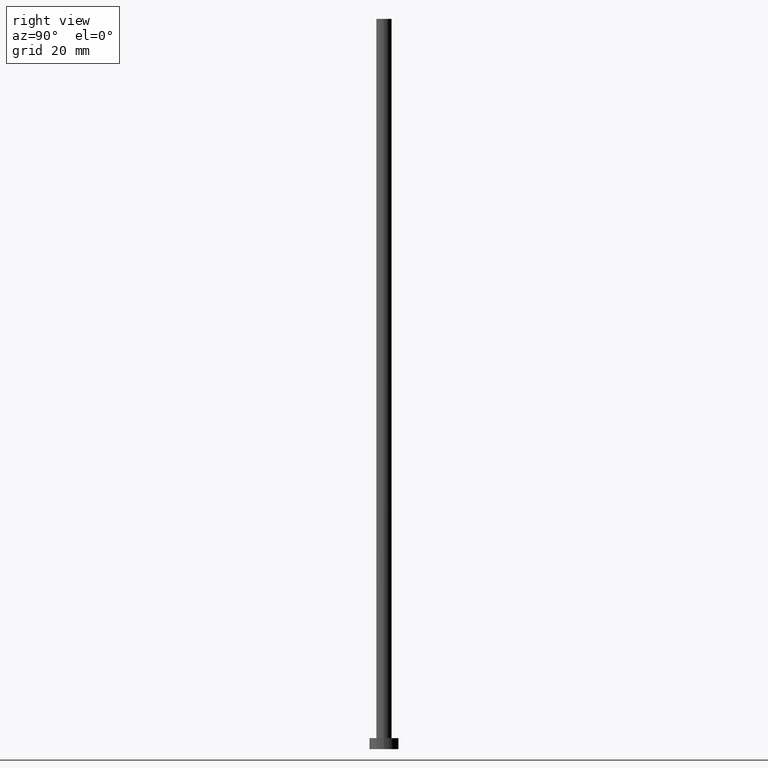
[diagram: clean part render]
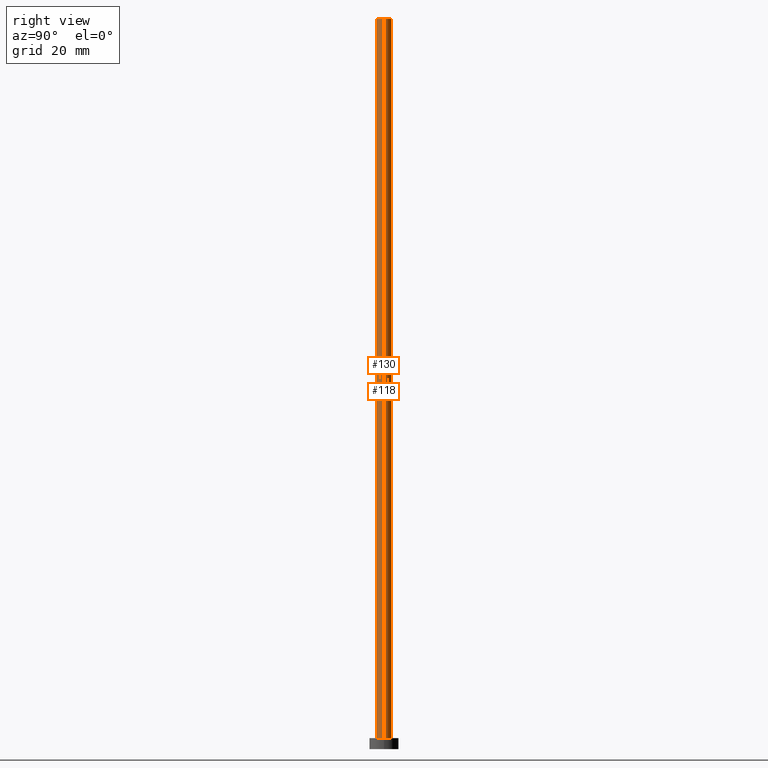
[diagram: same view with one multi-face feature highlighted, each face labeled with its STEP entity id]
A machine part, right view. The highlighted faces form ONE feature: a constant-radius fillet chain: 2 tangent blend faces with common blend radius 2.1 mm. The faces share edges in the B-rep.
Their STEP definitions:
[1] entity #130 (Cylinder):
#6 = AXIS2_PLACEMENT_3D ( 'NONE', #13, #173, #135 ) ;
#13 = CARTESIAN_POINT ( 'NONE',  ( 0.000000000000000000, 0.000000000000000000, 200.0000000000000000 ) ) ;
#23 = VERTEX_POINT ( 'NONE', #93 ) ;
#25 = CIRCLE ( 'NONE', #165, 2.100000000000000089 ) ;
#28 = VERTEX_POINT ( 'NONE', #245 ) ;
#30 = FACE_OUTER_BOUND ( 'NONE', #90, .T. ) ;
#33 = CARTESIAN_POINT ( 'NONE',  ( 2.100000000000000089, 2.571758278209441957E-16, 3.000000000000000000 ) ) ;
#36 = VECTOR ( 'NONE', #49, 1000.000000000000000 ) ;
#49 = DIRECTION ( 'NONE',  ( -0.000000000000000000, -0.000000000000000000, -1.000000000000000000 ) ) ;
#52 = CARTESIAN_POINT ( 'NONE',  ( 0.000000000000000000, 0.000000000000000000, 3.000000000000000000 ) ) ;
#54 = EDGE_CURVE ( 'NONE', #23, #131, #208, .T. ) ;
#59 = EDGE_CURVE ( 'NONE', #28, #131, #117, .T. ) ;
#66 = ORIENTED_EDGE ( 'NONE', *, *, #147, .F. ) ;
#90 = EDGE_LOOP ( 'NONE', ( #113, #66, #97, #169 ) ) ;
#93 = CARTESIAN_POINT ( 'NONE',  ( -2.100000000000000089, 0.000000000000000000, 3.000000000000000000 ) ) ;
#97 = ORIENTED_EDGE ( 'NONE', *, *, #126, .T. ) ;
#100 = DIRECTION ( 'NONE',  ( -0.000000000000000000, -0.000000000000000000, -1.000000000000000000 ) ) ;
#103 = CARTESIAN_POINT ( 'NONE',  ( 0.000000000000000000, 0.000000000000000000, 200.0000000000000000 ) ) ;
#110 = AXIS2_PLACEMENT_3D ( 'NONE', #52, #193, #210 ) ;
#113 = ORIENTED_EDGE ( 'NONE', *, *, #59, .F. ) ;
#117 = LINE ( 'NONE', #255, #134 ) ;
#119 = DIRECTION ( 'NONE',  ( 1.000000000000000000, 0.000000000000000000, 0.000000000000000000 ) ) ;
#126 = EDGE_CURVE ( 'NONE', #144, #23, #171, .T. ) ;
#130 = ADVANCED_FACE ( 'NONE', ( #30 ), #190, .T. ) ;
#131 = VERTEX_POINT ( 'NONE', #33 ) ;
#134 = VECTOR ( 'NONE', #100, 1000.000000000000000 ) ;
#135 = DIRECTION ( 'NONE',  ( -1.000000000000000000, 0.000000000000000000, 0.000000000000000000 ) ) ;
#144 = VERTEX_POINT ( 'NONE', #195 ) ;
#147 = EDGE_CURVE ( 'NONE', #144, #28, #25, .T. ) ;
#165 = AXIS2_PLACEMENT_3D ( 'NONE', #103, #249, #119 ) ;
#169 = ORIENTED_EDGE ( 'NONE', *, *, #54, .T. ) ;
#171 = LINE ( 'NONE', #207, #36 ) ;
#173 = DIRECTION ( 'NONE',  ( -0.000000000000000000, -0.000000000000000000, -1.000000000000000000 ) ) ;
#190 = CYLINDRICAL_SURFACE ( 'NONE', #6, 2.100000000000000089 ) ;
#193 = DIRECTION ( 'NONE',  ( 0.000000000000000000, 0.000000000000000000, 1.000000000000000000 ) ) ;
#195 = CARTESIAN_POINT ( 'NONE',  ( -2.100000000000000089, 0.000000000000000000, 200.0000000000000000 ) ) ;
#207 = CARTESIAN_POINT ( 'NONE',  ( -2.100000000000000089, 0.000000000000000000, 200.0000000000000000 ) ) ;
#208 = CIRCLE ( 'NONE', #110, 2.100000000000000089 ) ;
#210 = DIRECTION ( 'NONE',  ( 1.000000000000000000, 0.000000000000000000, 0.000000000000000000 ) ) ;
#245 = CARTESIAN_POINT ( 'NONE',  ( 2.100000000000000089, 2.571758278209441957E-16, 200.0000000000000000 ) ) ;
#249 = DIRECTION ( 'NONE',  ( 0.000000000000000000, 0.000000000000000000, 1.000000000000000000 ) ) ;
#255 = CARTESIAN_POINT ( 'NONE',  ( 2.100000000000000089, 2.571758278209441957E-16, 200.0000000000000000 ) ) ;
[2] entity #118 (Cylinder):
#23 = VERTEX_POINT ( 'NONE', #93 ) ;
#28 = VERTEX_POINT ( 'NONE', #245 ) ;
#33 = CARTESIAN_POINT ( 'NONE',  ( 2.100000000000000089, 2.571758278209441957E-16, 3.000000000000000000 ) ) ;
#36 = VECTOR ( 'NONE', #49, 1000.000000000000000 ) ;
#39 = AXIS2_PLACEMENT_3D ( 'NONE', #150, #78, #47 ) ;
#47 = DIRECTION ( 'NONE',  ( -1.000000000000000000, 0.000000000000000000, 0.000000000000000000 ) ) ;
#49 = DIRECTION ( 'NONE',  ( -0.000000000000000000, -0.000000000000000000, -1.000000000000000000 ) ) ;
#59 = EDGE_CURVE ( 'NONE', #28, #131, #117, .T. ) ;
#71 = ORIENTED_EDGE ( 'NONE', *, *, #59, .T. ) ;
#73 = EDGE_LOOP ( 'NONE', ( #247, #71, #242, #184 ) ) ;
#74 = DIRECTION ( 'NONE',  ( 1.000000000000000000, 0.000000000000000000, 0.000000000000000000 ) ) ;
#78 = DIRECTION ( 'NONE',  ( -0.000000000000000000, -0.000000000000000000, -1.000000000000000000 ) ) ;
#93 = CARTESIAN_POINT ( 'NONE',  ( -2.100000000000000089, 0.000000000000000000, 3.000000000000000000 ) ) ;
#100 = DIRECTION ( 'NONE',  ( -0.000000000000000000, -0.000000000000000000, -1.000000000000000000 ) ) ;
#107 = DIRECTION ( 'NONE',  ( 1.000000000000000000, 0.000000000000000000, 0.000000000000000000 ) ) ;
#117 = LINE ( 'NONE', #255, #134 ) ;
#118 = ADVANCED_FACE ( 'NONE', ( #133 ), #123, .T. ) ;
#123 = CYLINDRICAL_SURFACE ( 'NONE', #39, 2.100000000000000089 ) ;
#126 = EDGE_CURVE ( 'NONE', #144, #23, #171, .T. ) ;
#127 = CIRCLE ( 'NONE', #129, 2.100000000000000089 ) ;
#129 = AXIS2_PLACEMENT_3D ( 'NONE', #189, #212, #74 ) ;
#131 = VERTEX_POINT ( 'NONE', #33 ) ;
#133 = FACE_OUTER_BOUND ( 'NONE', #73, .T. ) ;
#134 = VECTOR ( 'NONE', #100, 1000.000000000000000 ) ;
#144 = VERTEX_POINT ( 'NONE', #195 ) ;
#150 = CARTESIAN_POINT ( 'NONE',  ( 0.000000000000000000, 0.000000000000000000, 200.0000000000000000 ) ) ;
#171 = LINE ( 'NONE', #207, #36 ) ;
#184 = ORIENTED_EDGE ( 'NONE', *, *, #126, .F. ) ;
#185 = EDGE_CURVE ( 'NONE', #28, #144, #127, .T. ) ;
#189 = CARTESIAN_POINT ( 'NONE',  ( 0.000000000000000000, 0.000000000000000000, 200.0000000000000000 ) ) ;
#195 = CARTESIAN_POINT ( 'NONE',  ( -2.100000000000000089, 0.000000000000000000, 200.0000000000000000 ) ) ;
#198 = DIRECTION ( 'NONE',  ( 0.000000000000000000, 0.000000000000000000, 1.000000000000000000 ) ) ;
#199 = CARTESIAN_POINT ( 'NONE',  ( 0.000000000000000000, 0.000000000000000000, 3.000000000000000000 ) ) ;
#207 = CARTESIAN_POINT ( 'NONE',  ( -2.100000000000000089, 0.000000000000000000, 200.0000000000000000 ) ) ;
#209 = AXIS2_PLACEMENT_3D ( 'NONE', #199, #198, #107 ) ;
#212 = DIRECTION ( 'NONE',  ( 0.000000000000000000, 0.000000000000000000, 1.000000000000000000 ) ) ;
#225 = CIRCLE ( 'NONE', #209, 2.100000000000000089 ) ;
#228 = EDGE_CURVE ( 'NONE', #131, #23, #225, .T. ) ;
#242 = ORIENTED_EDGE ( 'NONE', *, *, #228, .T. ) ;
#245 = CARTESIAN_POINT ( 'NONE',  ( 2.100000000000000089, 2.571758278209441957E-16, 200.0000000000000000 ) ) ;
#247 = ORIENTED_EDGE ( 'NONE', *, *, #185, .F. ) ;
#255 = CARTESIAN_POINT ( 'NONE',  ( 2.100000000000000089, 2.571758278209441957E-16, 200.0000000000000000 ) ) ;